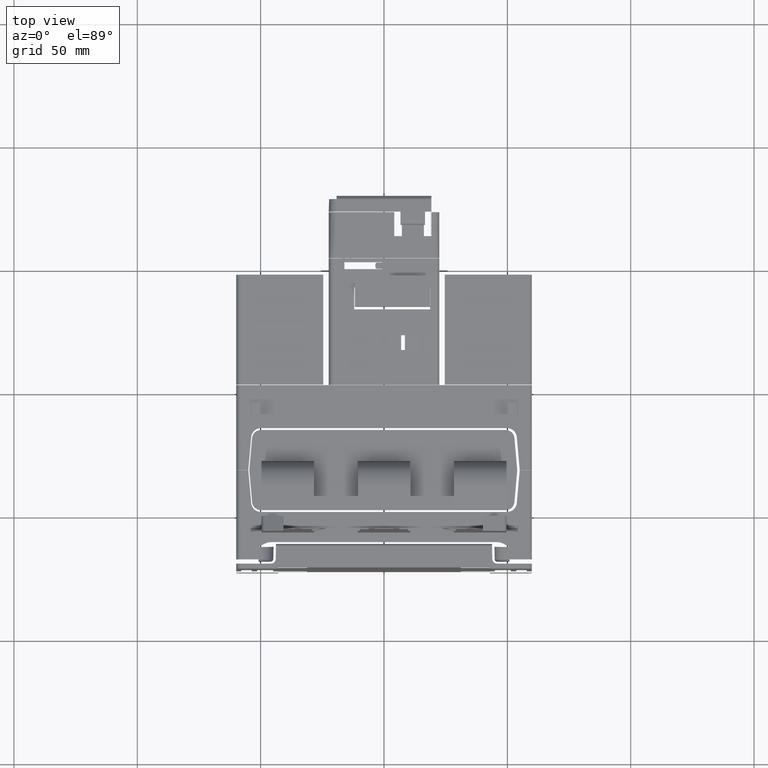
[diagram: clean part render]
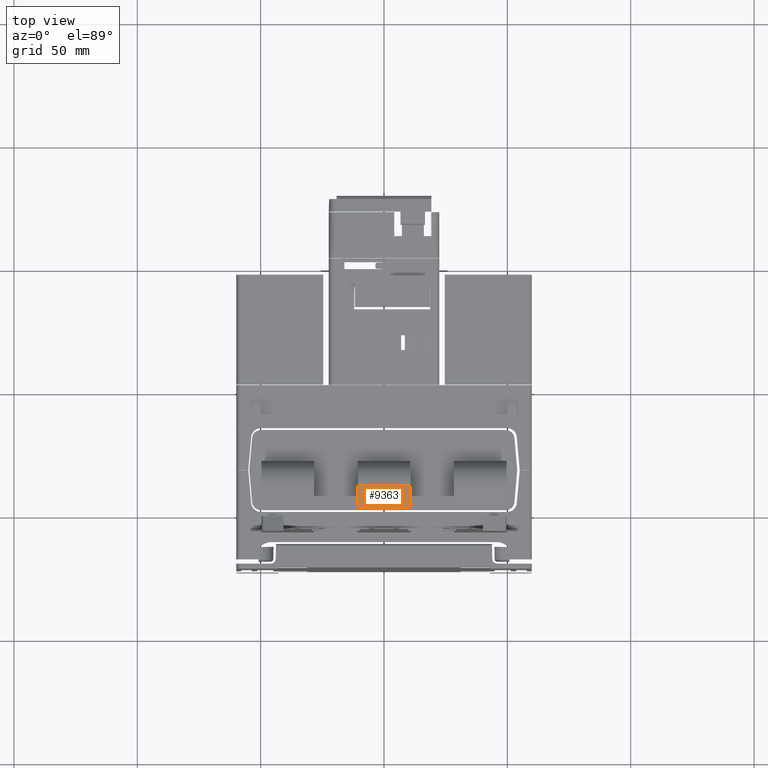
[diagram: same view with one face highlighted and labeled with its STEP entity id]
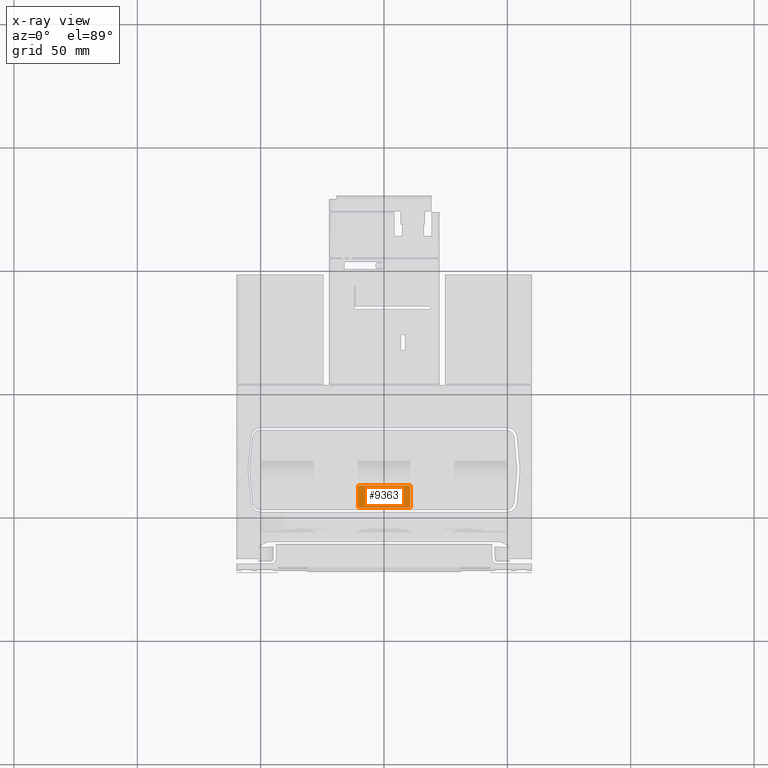
[diagram: x-ray of the same camera — body ghosted, the highlighted face saturated]
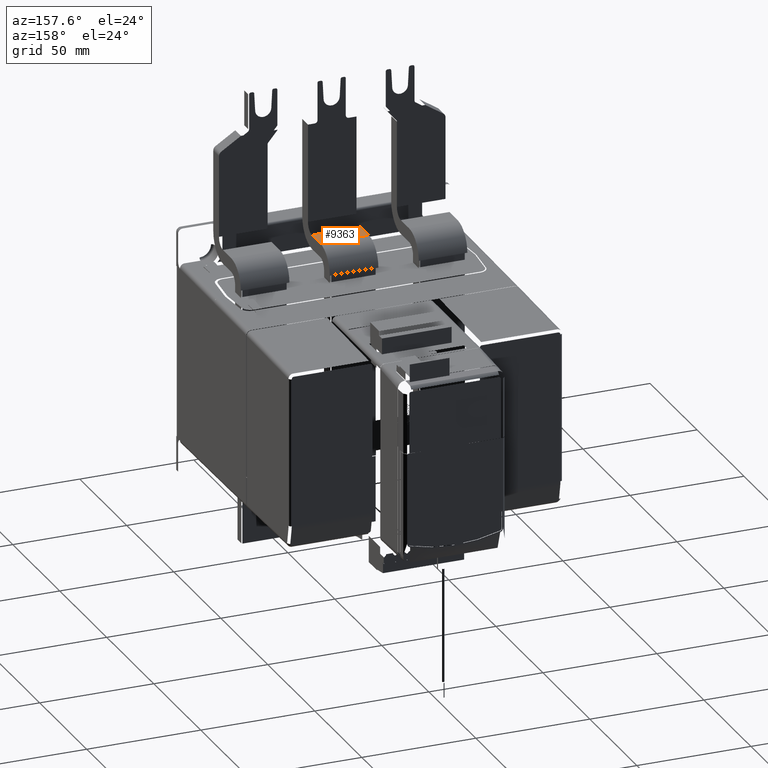
[diagram: same view with one face highlighted and labeled with its STEP entity id]
A machine part, top view. The second image highlights one B-rep face of the part: STEP entity #9363.
The next image is the same camera in x-ray: the body ghosted, the highlighted face saturated — about 0% of this face is hidden behind the body in this view.
A second angle (auxiliary view) of the same face is appended — the face is thin or edge-on in the first view.
In plain terms, the highlighted planar face has unit normal (0, 0, 1).
Its self-contained STEP definition (entity closure, byte-faithful):
#9114=DIRECTION('',(0.E0,-1.E0,0.E0));
#9115=VECTOR('',#9114,3.503937007874E-1);
#9116=CARTESIAN_POINT('',(4.192913385827E-1,-1.562795275591E0,
2.093503937008E0));
#9117=LINE('',#9116,#9115);
#9148=DIRECTION('',(0.E0,-1.E0,0.E0));
#9149=VECTOR('',#9148,3.503937007874E-1);
#9150=CARTESIAN_POINT('',(-4.192913385827E-1,-1.562795275591E0,
2.093503937008E0));
#9151=LINE('',#9150,#9149);
#9195=DIRECTION('',(-1.E0,0.E0,0.E0));
#9196=VECTOR('',#9195,8.385826771654E-1);
#9197=CARTESIAN_POINT('',(4.192913385827E-1,-1.913188976378E0,
2.093503937008E0));
#9198=LINE('',#9197,#9196);
#9199=DIRECTION('',(-1.E0,0.E0,0.E0));
#9200=VECTOR('',#9199,8.385826771654E-1);
#9201=CARTESIAN_POINT('',(4.192913385827E-1,-1.562795275591E0,
2.093503937008E0));
#9202=LINE('',#9201,#9200);
#9219=CARTESIAN_POINT('',(4.192913385827E-1,-1.562795275591E0,
2.093503937008E0));
#9220=CARTESIAN_POINT('',(4.192913385827E-1,-1.913188976378E0,
2.093503937008E0));
#9221=VERTEX_POINT('',#9219);
#9222=VERTEX_POINT('',#9220);
#9235=CARTESIAN_POINT('',(-4.192913385827E-1,-1.562795275591E0,
2.093503937008E0));
#9236=CARTESIAN_POINT('',(-4.192913385827E-1,-1.913188976378E0,
2.093503937008E0));
#9237=VERTEX_POINT('',#9235);
#9238=VERTEX_POINT('',#9236);
#9351=CARTESIAN_POINT('',(4.192913385827E-1,-1.562795275591E0,
2.093503937008E0));
#9352=DIRECTION('',(0.E0,0.E0,1.E0));
#9353=DIRECTION('',(0.E0,-1.E0,0.E0));
#9354=AXIS2_PLACEMENT_3D('',#9351,#9352,#9353);
#9355=PLANE('',#9354);
#9356=ORIENTED_EDGE('',*,*,#9280,.T.);
#9358=ORIENTED_EDGE('',*,*,#9357,.T.);
#9359=ORIENTED_EDGE('',*,*,#9315,.F.);
#9360=ORIENTED_EDGE('',*,*,#9343,.F.);
#9361=EDGE_LOOP('',(#9356,#9358,#9359,#9360));
#9362=FACE_OUTER_BOUND('',#9361,.F.);
#9363=ADVANCED_FACE('',(#9362),#9355,.T.);
#9280=EDGE_CURVE('',#9221,#9222,#9117,.T.);
#9315=EDGE_CURVE('',#9237,#9238,#9151,.T.);
#9343=EDGE_CURVE('',#9221,#9237,#9202,.T.);
#9357=EDGE_CURVE('',#9222,#9238,#9198,.T.);